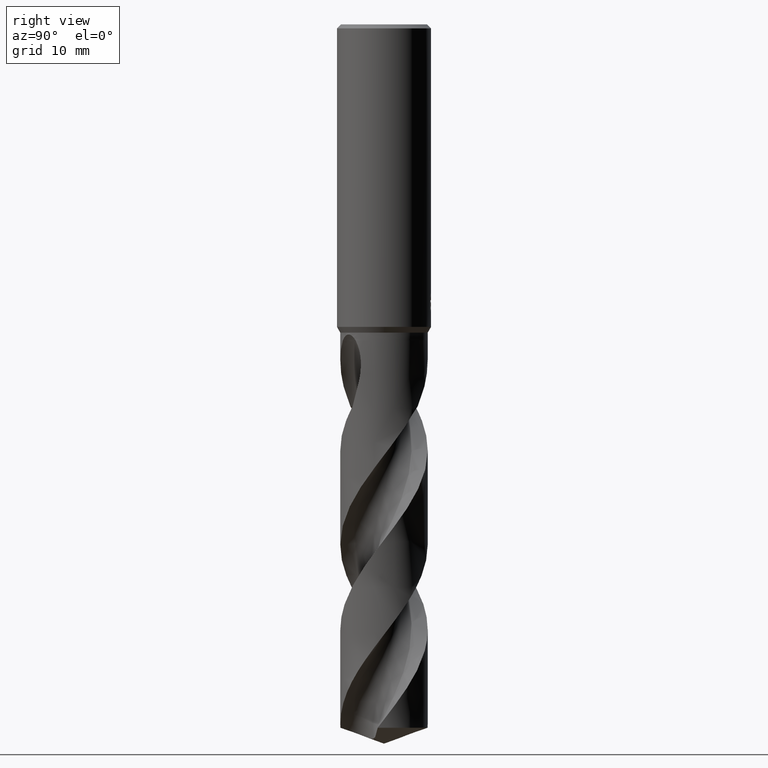
[diagram: clean part render]
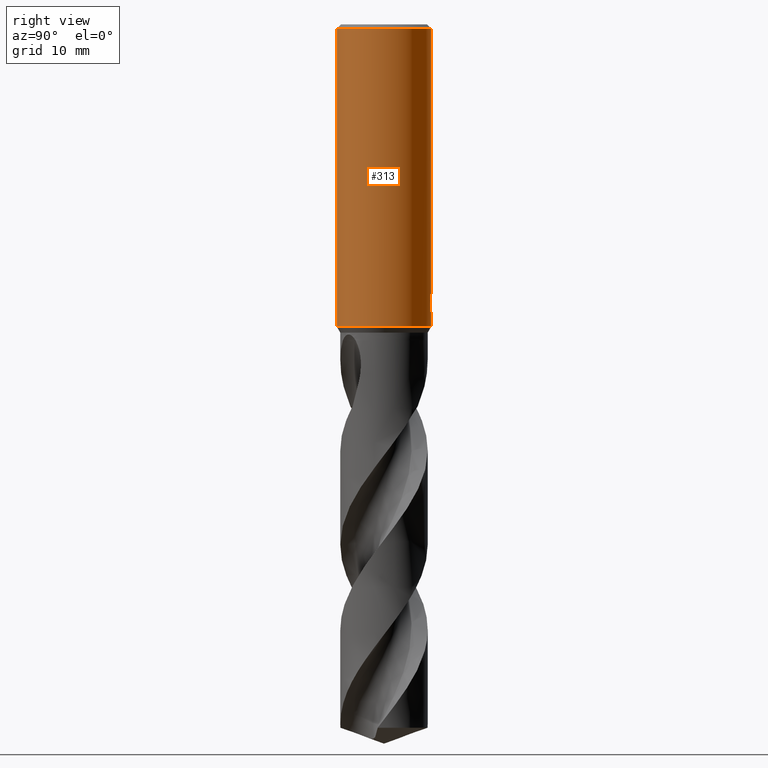
[diagram: same view with one face highlighted and labeled with its STEP entity id]
A machine part, right view. The second image highlights one B-rep face of the part: STEP entity #313.
In plain terms, the highlighted cylindrical surface (partial cylindrical patch) has radius 7 mm, axis along (-0, -0, 1).
Its self-contained STEP definition (entity closure, byte-faithful):
#313=ADVANCED_FACE('',(#808),#809,.T.);
#321=VERTEX_POINT('',#817);
#323=EDGE_CURVE('',#443,#321,#819,.T.);
#325=VERTEX_POINT('',#821);
#331=EDGE_CURVE('',#601,#325,#829,.T.);
#351=EDGE_CURVE('',#585,#363,#851,.T.);
#353=EDGE_CURVE('',#321,#607,#853,.T.);
#355=EDGE_CURVE('',#363,#487,#855,.T.);
#363=VERTEX_POINT('',#863);
#403=EDGE_CURVE('',#443,#669,#907,.T.);
#415=VERTEX_POINT('',#919);
#437=VERTEX_POINT('',#941);
#443=VERTEX_POINT('',#948);
#445=EDGE_CURVE('',#437,#415,#950,.T.);
#459=EDGE_CURVE('',#607,#601,#966,.T.);
#487=VERTEX_POINT('',#996);
#585=VERTEX_POINT('',#1103);
#601=VERTEX_POINT('',#1120);
#607=VERTEX_POINT('',#1126);
#627=VERTEX_POINT('',#1149);
#631=EDGE_CURVE('',#627,#487,#1153,.T.);
#669=VERTEX_POINT('',#1196);
#679=EDGE_CURVE('',#669,#437,#1207,.T.);
#683=EDGE_CURVE('',#325,#585,#1211,.T.);
#723=EDGE_CURVE('',#627,#415,#1256,.T.);
#808=FACE_OUTER_BOUND('',#1467,.T.);
#809=CYLINDRICAL_SURFACE('',#1468,7.0);
#817=CARTESIAN_POINT('',(0.29010312703583,6.99398600053532,-42.9998328990228));
#819=B_SPLINE_CURVE_WITH_KNOTS('',3,(#1494,#1495,#1496,#1497,#1498,#1499,#1500,#1501,#1502,#1503,#1504,#1505,#1506,#1507,#1508,#1509),.UNSPECIFIED.,.F.,.F.,(4,2,2,2,2,2,2,4),(5.85148113241198,6.15947819753677,6.46754648496164,6.77561477238651,7.08368305981137,7.39175134723624,7.69959009287517,8.00742883851411),.UNSPECIFIED.);
#821=CARTESIAN_POINT('',(1.33721006514658,6.87108937808778,-42.2901657003257));
#829=B_SPLINE_CURVE_WITH_KNOTS('',3,(#1520,#1521,#1522,#1523,#1524,#1525,#1526,#1527,#1528,#1529),.UNSPECIFIED.,.F.,.F.,(4,2,2,2,4),(8.00742815979372,8.31526687871434,8.62310559763496,8.93107395768936,9.23904231774376),.UNSPECIFIED.);
#851=B_SPLINE_CURVE_WITH_KNOTS('',3,(#1580,#1581,#1582,#1583,#1584,#1585,#1586,#1587,#1588,#1589),.UNSPECIFIED.,.F.,.F.,(4,2,2,2,4),(0.615936741381086,0.923905112071629,1.23187348276217,1.53971221216111,1.84755094156004),.UNSPECIFIED.);
#853=ELLIPSE('',#1592,21.3359620135884,7.0);
#855=B_SPLINE_CURVE_WITH_KNOTS('',3,(#1595,#1596,#1597,#1598,#1599,#1600,#1601,#1602,#1603,#1604,#1605,#1606,#1607,#1608,#1609,#1610,#1611,#1612,#1613,#1614,#1615,#1616,#1617,#1618,#1619,#1620,#1621),.UNSPECIFIED.,.F.,.F.,(4,2,3,2,2,2,2,2,2,2,2,2,4),(-0.542036445993936,-0.271018222996967,0.0,0.271018222996968,0.542036445993935,0.813346115303562,1.08465578461319,1.35548019069071,1.62630459676823,1.89727226982465,2.16823994288107,2.4392076159375,2.71017528899392),.UNSPECIFIED.);
#863=CARTESIAN_POINT('',(0.799431726384364,6.95420081065036,-40.000000276873));
#907=LINE('',#1997,#1998);
#919=CARTESIAN_POINT('',(8.57224447675664E-016,-7.0,-0.600000000000001));
#941=CARTESIAN_POINT('',(8.57224447675664E-016,-7.0,-45.0));
#948=CARTESIAN_POINT('',(9.85631653213508E-016,7.0,-43.0310253601033));
#950=LINE('',#2431,#2432);
#966=LINE('',#2465,#2466);
#996=CARTESIAN_POINT('',(-2.74802050569022E-015,7.0,-41.0232688117743));
#1103=CARTESIAN_POINT('',(1.33721006514658,6.87108937808778,-40.5150484364821));
#1120=CARTESIAN_POINT('',(0.873560781758956,6.94527836451302,-42.7587351791531));
#1126=CARTESIAN_POINT('',(0.873560781758957,6.94527836451302,-41.3198931596091));
#1149=CARTESIAN_POINT('',(0.0,7.0,-0.600000000000001));
#1153=LINE('',#4228,#4229);
#1196=CARTESIAN_POINT('',(0.0,7.0,-45.0));
#1207=CIRCLE('',#4403,7.0);
#1211=LINE('',#4410,#4411);
#1256=CIRCLE('',#5135,7.0);
#1467=EDGE_LOOP('',(#5250,#5251,#5252,#5253,#5254,#5255,#5256,#5257,#5258,#5259,#5260,#5261));
#1468=AXIS2_PLACEMENT_3D('',#5262,#5263,#5264);
#1494=CARTESIAN_POINT('',(-1.37956950013868,6.862709959942,-42.3118860272267));
#1495=CARTESIAN_POINT('',(-1.31985944512012,6.87471311484171,-42.4006164760917));
#1496=CARTESIAN_POINT('',(-1.2521751980669,6.88748156909145,-42.4820605072323));
#1497=CARTESIAN_POINT('',(-1.10803116428717,6.91213530701744,-42.6262319850711));
#1498=CARTESIAN_POINT('',(-1.02657943157941,6.92489379632338,-42.6939460667801));
#1499=CARTESIAN_POINT('',(-0.849091702963374,6.94888931409906,-42.8134214863536));
#1500=CARTESIAN_POINT('',(-0.753058262458167,6.96010382408442,-42.8651911418259));
#1501=CARTESIAN_POINT('',(-0.552521113580874,6.97888690311178,-42.9484382818491));
#1502=CARTESIAN_POINT('',(-0.447850922696022,6.98645535289821,-42.9799817262365));
#1503=CARTESIAN_POINT('',(-0.237116900888673,6.99677814585499,-43.0214038898241));
#1504=CARTESIAN_POINT('',(-0.131050755579278,6.99952647100642,-43.0312723335086));
#1505=CARTESIAN_POINT('',(0.0742499035867442,7.00035830241466,-43.0312723335086));
#1506=CARTESIAN_POINT('',(0.180258797232803,6.99847263330913,-43.0214183295518));
#1507=CARTESIAN_POINT('',(0.390914314103444,6.98987113130027,-42.9800352841335));
#1508=CARTESIAN_POINT('',(0.495563147536711,6.98316134581655,-42.9485162373715));
#1509=CARTESIAN_POINT('',(0.595822105081569,6.97459647715165,-42.9069156645199));
#1520=CARTESIAN_POINT('',(0.595821832861735,6.97459650040669,-42.906915229706));
#1521=CARTESIAN_POINT('',(0.696080782017313,6.96603163640014,-42.8653146604208));
#1522=CARTESIAN_POINT('',(0.792116837306029,6.95561315461849,-42.8135662553911));
#1523=CARTESIAN_POINT('',(0.969618432803252,6.93309768685463,-42.6941279407995));
#1524=CARTESIAN_POINT('',(1.05108130466953,6.92102322032351,-42.626429821765));
#1525=CARTESIAN_POINT('',(1.1952919969079,6.89758043528895,-42.4822456158257));
#1526=CARTESIAN_POINT('',(1.26302025262196,6.88538170061673,-42.4007689419929));
#1527=CARTESIAN_POINT('',(1.38250505299397,6.86238887709316,-42.2232465506102));
#1528=CARTESIAN_POINT('',(1.43427020866861,6.8516188874023,-42.1272035084601));
#1529=CARTESIAN_POINT('',(1.47588608833803,6.842642782891,-42.0269345007415));
#1580=CARTESIAN_POINT('',(1.47588609639398,6.84264278115341,-40.7782796501355));
#1581=CARTESIAN_POINT('',(1.43427021528289,6.85161888602694,-40.6780106389627));
#1582=CARTESIAN_POINT('',(1.38250505781555,6.86238887614053,-40.5819675935055));
#1583=CARTESIAN_POINT('',(1.26302025330318,6.88538170051044,-40.4044451960098));
#1584=CARTESIAN_POINT('',(1.19529199524107,6.8975804356046,-40.3229685193712));
#1585=CARTESIAN_POINT('',(1.05108129803076,6.92102322135803,-40.1787843085017));
#1586=CARTESIAN_POINT('',(0.969618423375198,6.93309768821244,-40.1110861871653));
#1587=CARTESIAN_POINT('',(0.792116821800197,6.95561315642346,-39.9916478685111));
#1588=CARTESIAN_POINT('',(0.696080763223002,6.96603163832751,-39.9398994617205));
#1589=CARTESIAN_POINT('',(0.595821810636764,6.97459650230531,-39.8982988910209));
#1592=AXIS2_PLACEMENT_3D('',#5309,#5310,#5311);
#1595=CARTESIAN_POINT('',(0.664987495682015,6.96834210057074,-39.8134609607519));
#1596=CARTESIAN_POINT('',(0.728704683046946,6.96226158209931,-39.8772132619402));
#1597=CARTESIAN_POINT('',(0.783980930146228,6.9560576278509,-39.9579629630826));
#1598=CARTESIAN_POINT('',(0.857331586478981,6.94739853321816,-40.1350040779371));
#1599=CARTESIAN_POINT('',(0.875400981188567,6.94504666090402,-40.2313026049211));
#1600=CARTESIAN_POINT('',(0.875400981188567,6.94504666090402,-40.3216420125868));
#1601=CARTESIAN_POINT('',(0.875400981188567,6.94504666090402,-40.4119814202524));
#1602=CARTESIAN_POINT('',(0.857331586478977,6.94739853321816,-40.5082799472365));
#1603=CARTESIAN_POINT('',(0.783980930146221,6.9560576278509,-40.685321062091));
#1604=CARTESIAN_POINT('',(0.728704683046946,6.96226158209931,-40.7660707632334));
#1605=CARTESIAN_POINT('',(0.601201788425301,6.97442915788175,-40.8936439232623));
#1606=CARTESIAN_POINT('',(0.520416779900602,6.98119186147897,-40.9489826210903));
#1607=CARTESIAN_POINT('',(0.343290106212511,6.99214025419339,-41.0224214149619));
#1608=CARTESIAN_POINT('',(0.246940334999491,6.99622750070997,-41.0405166027747));
#1609=CARTESIAN_POINT('',(0.06627416096803,7.00026837167467,-41.0405166027747));
#1610=CARTESIAN_POINT('',(-0.0300009021098098,7.00049584323788,-41.0224792632517));
#1611=CARTESIAN_POINT('',(-0.207086828462645,6.99749649166544,-40.9491375975081));
#1612=CARTESIAN_POINT('',(-0.287900132119289,6.99436879728022,-40.8938351432694));
#1613=CARTESIAN_POINT('',(-0.415543530410312,6.98794742768012,-40.7662368077791));
#1614=CARTESIAN_POINT('',(-0.470882886829905,6.98424107836303,-40.6854131216791));
#1615=CARTESIAN_POINT('',(-0.544286323056282,6.97890439374672,-40.5082789756897));
#1616=CARTESIAN_POINT('',(-0.562348199187247,6.97737518719403,-40.4119645702723));
#1617=CARTESIAN_POINT('',(-0.562348199187247,6.97737518719403,-40.2313194549013));
#1618=CARTESIAN_POINT('',(-0.544286323056282,6.97890439374672,-40.1350050494839));
#1619=CARTESIAN_POINT('',(-0.470882886829905,6.98424107836303,-39.9578709034945));
#1620=CARTESIAN_POINT('',(-0.415543530410313,6.98794742768012,-39.8770472173944));
#1621=CARTESIAN_POINT('',(-0.351704954786946,6.99115896148688,-39.8132311791295));
#1997=CARTESIAN_POINT('',(-8.57224447675664E-016,7.0,-22.8));
#1998=VECTOR('',#5372,1.0);
#2431=CARTESIAN_POINT('',(8.57224447675664E-016,-7.0,-22.8));
#2432=VECTOR('',#5381,1.0);
#2465=CARTESIAN_POINT('',(0.873560781758957,6.94527836451302,-42.0393141693811));
#2466=VECTOR('',#5409,1.0);
#4228=CARTESIAN_POINT('',(-8.57224447675664E-016,7.0,-22.8));
#4229=VECTOR('',#5599,1.0);
#4403=AXIS2_PLACEMENT_3D('',#5691,#5692,#5693);
#4410=CARTESIAN_POINT('',(1.33721006514658,6.87108937808778,-41.4026070684039));
#4411=VECTOR('',#5695,1.0);
#5135=AXIS2_PLACEMENT_3D('',#5749,#5750,#5751);
#5250=ORIENTED_EDGE('',*,*,#631,.F.);
#5251=ORIENTED_EDGE('',*,*,#723,.T.);
#5252=ORIENTED_EDGE('',*,*,#445,.F.);
#5253=ORIENTED_EDGE('',*,*,#679,.F.);
#5254=ORIENTED_EDGE('',*,*,#403,.F.);
#5255=ORIENTED_EDGE('',*,*,#323,.T.);
#5256=ORIENTED_EDGE('',*,*,#353,.T.);
#5257=ORIENTED_EDGE('',*,*,#459,.T.);
#5258=ORIENTED_EDGE('',*,*,#331,.T.);
#5259=ORIENTED_EDGE('',*,*,#683,.T.);
#5260=ORIENTED_EDGE('',*,*,#351,.T.);
#5261=ORIENTED_EDGE('',*,*,#355,.T.);
#5262=CARTESIAN_POINT('',(0.0,0.0,-22.8));
#5263=DIRECTION('',(-0.0,-0.0,1.0));
#5264=DIRECTION('',(0.0,1.0,0.0));
#5309=CARTESIAN_POINT('',(0.0,0.0,-43.8351219173269));
#5310=DIRECTION('',(0.944648353914092,0.0,-0.328084573619969));
#5311=DIRECTION('',(0.328084573619969,-0.0,0.944648353914092));
#5372=DIRECTION('',(0.0,0.0,-1.0));
#5381=DIRECTION('',(-0.0,-0.0,1.0));
#5409=DIRECTION('',(0.0,0.0,-1.0));
#5599=DIRECTION('',(0.0,0.0,-1.0));
#5691=CARTESIAN_POINT('',(0.0,0.0,-45.0));
#5692=DIRECTION('',(0.0,0.0,-1.0));
#5693=DIRECTION('',(0.0,1.0,0.0));
#5695=DIRECTION('',(-0.0,-0.0,1.0));
#5749=CARTESIAN_POINT('',(0.0,0.0,-0.600000000000001));
#5750=DIRECTION('',(0.0,0.0,-1.0));
#5751=DIRECTION('',(0.0,1.0,0.0));